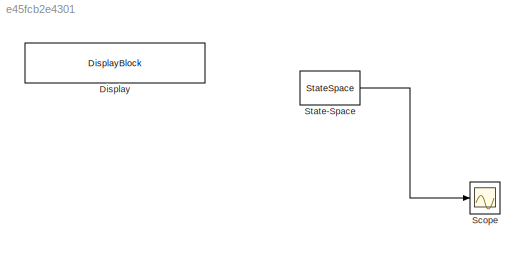
MODEL slx_e45fcb2e4301
KIND model
CONFIG AbsTol = auto
CONFIG EnableMultiTasking = off
CONFIG FixedStep = auto
CONFIG MaxStep = auto
CONFIG MinStep = auto
CONFIG RelTol = 1e-3
CONFIG SampleTimeConstraint = Unconstrained
CONFIG Solver = VariableStepAuto
CONFIG SolverName = VariableStepAuto
CONFIG StartTime = 0.0
CONFIG StopTime = 10.0
BLOCK [DisplayBlock] Display
  LabelPosition = Hide
  WebBlockId = 3
BLOCK [Scope] Scope
  Floating = off
  NumInputPorts = 1
  Ports = [1]
  ScopeSpecificationString = Simulink.scopes.TimeScopeBlockCfg('CurrentConfiguration', extmgr.ConfigurationSet(extmgr.Configuration('Core','General UI',true),extmgr.Configuration('Core','Source UI',true),extmgr.Configuration('Sources','WiredSimulink',true),extmgr.Configuration('Visuals','Time Domain',true,'SerializedDisplays',{struct('MinYLimReal','-0.97991','MaxYLimReal','1.21999','YLabelReal','','MinYLimMag','0.00000','MaxY...<+1387ch>
BLOCK [StateSpace] State-Space
  A = A-B*K
  B = B
  C = C
  D = 0
  InitialCondition = [1;0;0;0]
  Ports = [1, 1]
LINE State-Space:1 -> Scope:1
